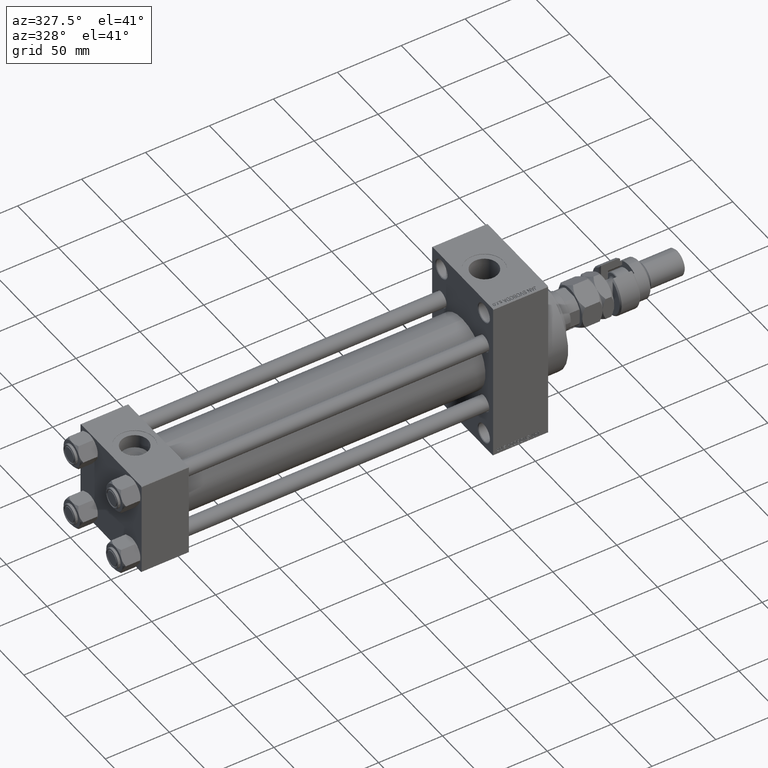
[diagram: clean part render]
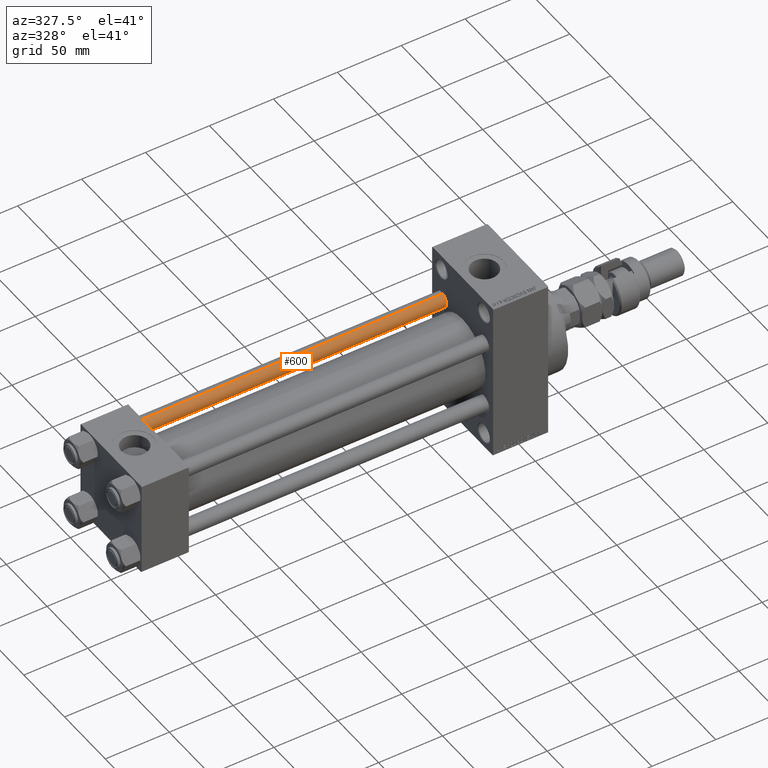
[diagram: same view with one face highlighted and labeled with its STEP entity id]
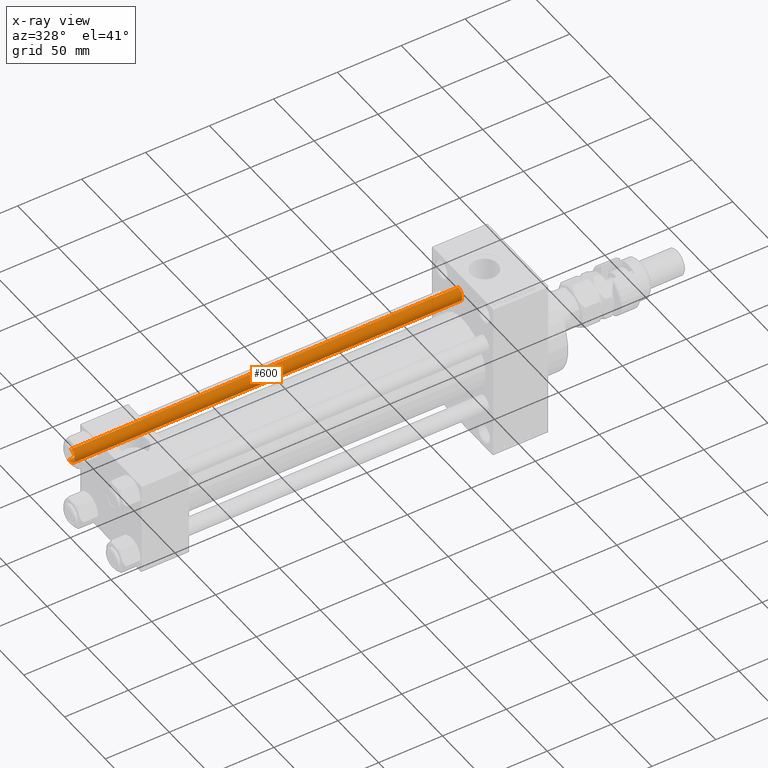
[diagram: x-ray of the same camera — body ghosted, the highlighted face saturated]
A machine part, auxiliary view. The second image highlights one B-rep face of the part: STEP entity #600.
The next image is the same camera in x-ray: the body ghosted, the highlighted face saturated — about 0% of this face is hidden behind the body in this view.
In plain terms, the highlighted cylindrical surface (edge-blend (fillet) strip) has radius 6 mm, axis along (-1, -0, 0).
Its self-contained STEP definition (entity closure, byte-faithful):
#55 = EDGE_CURVE ( 'NONE', #8707, #191, #428, .T. ) ;
#191 = VERTEX_POINT ( 'NONE', #29129 ) ;
#402 = CARTESIAN_POINT ( 'NONE',  ( -6.000000000000000888, 0.000000000000000000, 303.5000000000000000 ) ) ;
#428 = LINE ( 'NONE', #678, #20383 ) ;
#600 = ADVANCED_FACE ( 'NONE', ( #20424 ), #13547, .T. ) ;
#678 = CARTESIAN_POINT ( 'NONE',  ( 6.000000000000000888, 7.347880794884120722E-16, 304.0000000000000000 ) ) ;
#3739 = CIRCLE ( 'NONE', #16701, 6.000000000000000888 ) ;
#3984 = DIRECTION ( 'NONE',  ( -0.000000000000000000, -0.000000000000000000, -1.000000000000000000 ) ) ;
#4023 = CARTESIAN_POINT ( 'NONE',  ( 0.000000000000000000, 0.000000000000000000, 0.4999999999999449329 ) ) ;
#4284 = ORIENTED_EDGE ( 'NONE', *, *, #55, .F. ) ;
#6309 = DIRECTION ( 'NONE',  ( 1.000000000000000000, 0.000000000000000000, 0.000000000000000000 ) ) ;
#7109 = EDGE_LOOP ( 'NONE', ( #4284, #41674, #13416, #19413 ) ) ;
#8692 = VERTEX_POINT ( 'NONE', #402 ) ;
#8707 = VERTEX_POINT ( 'NONE', #44598 ) ;
#8748 = EDGE_CURVE ( 'NONE', #8692, #30621, #32923, .T. ) ;
#9482 = CARTESIAN_POINT ( 'NONE',  ( 0.000000000000000000, 0.000000000000000000, 304.0000000000000000 ) ) ;
#13416 = ORIENTED_EDGE ( 'NONE', *, *, #8748, .T. ) ;
#13547 = CYLINDRICAL_SURFACE ( 'NONE', #18807, 6.000000000000000888 ) ;
#13872 = EDGE_CURVE ( 'NONE', #8707, #8692, #3739, .T. ) ;
#13910 = DIRECTION ( 'NONE',  ( 0.000000000000000000, 0.000000000000000000, -1.000000000000000000 ) ) ;
#15949 = DIRECTION ( 'NONE',  ( -0.000000000000000000, -0.000000000000000000, 1.000000000000000000 ) ) ;
#16701 = AXIS2_PLACEMENT_3D ( 'NONE', #29437, #13910, #6309 ) ;
#16816 = AXIS2_PLACEMENT_3D ( 'NONE', #4023, #15949, #43148 ) ;
#18807 = AXIS2_PLACEMENT_3D ( 'NONE', #9482, #35947, #36199 ) ;
#19260 = CIRCLE ( 'NONE', #16816, 6.000000000000000888 ) ;
#19413 = ORIENTED_EDGE ( 'NONE', *, *, #25515, .T. ) ;
#20383 = VECTOR ( 'NONE', #3984, 1000.000000000000000 ) ;
#20424 = FACE_OUTER_BOUND ( 'NONE', #7109, .T. ) ;
#25515 = EDGE_CURVE ( 'NONE', #30621, #191, #19260, .T. ) ;
#25793 = CARTESIAN_POINT ( 'NONE',  ( -6.000000000000000888, 0.000000000000000000, 304.0000000000000000 ) ) ;
#29129 = CARTESIAN_POINT ( 'NONE',  ( 6.000000000000000888, 7.347880794884120722E-16, 0.4999999999999449329 ) ) ;
#29437 = CARTESIAN_POINT ( 'NONE',  ( 0.000000000000000000, 0.000000000000000000, 303.5000000000000000 ) ) ;
#30621 = VERTEX_POINT ( 'NONE', #47223 ) ;
#32923 = LINE ( 'NONE', #25793, #36037 ) ;
#33182 = DIRECTION ( 'NONE',  ( -0.000000000000000000, -0.000000000000000000, -1.000000000000000000 ) ) ;
#35947 = DIRECTION ( 'NONE',  ( -0.000000000000000000, -0.000000000000000000, -1.000000000000000000 ) ) ;
#36037 = VECTOR ( 'NONE', #33182, 1000.000000000000000 ) ;
#36199 = DIRECTION ( 'NONE',  ( -1.000000000000000000, 0.000000000000000000, 0.000000000000000000 ) ) ;
#41674 = ORIENTED_EDGE ( 'NONE', *, *, #13872, .T. ) ;
#43148 = DIRECTION ( 'NONE',  ( 1.000000000000000000, 0.000000000000000000, 0.000000000000000000 ) ) ;
#44598 = CARTESIAN_POINT ( 'NONE',  ( 6.000000000000000888, 7.347880794884120722E-16, 303.5000000000000000 ) ) ;
#47223 = CARTESIAN_POINT ( 'NONE',  ( -6.000000000000000888, 0.000000000000000000, 0.4999999999999449329 ) ) ;